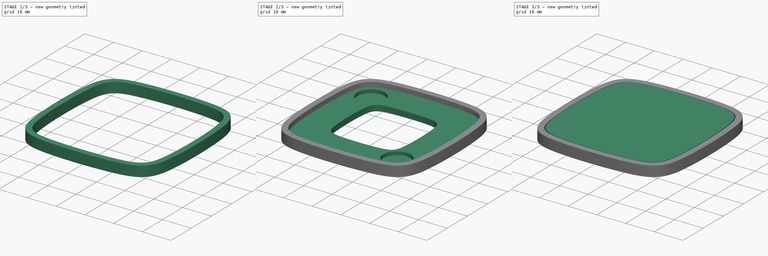
[diagram: build sequence overview — one tinted view per stage of 3, left to right]
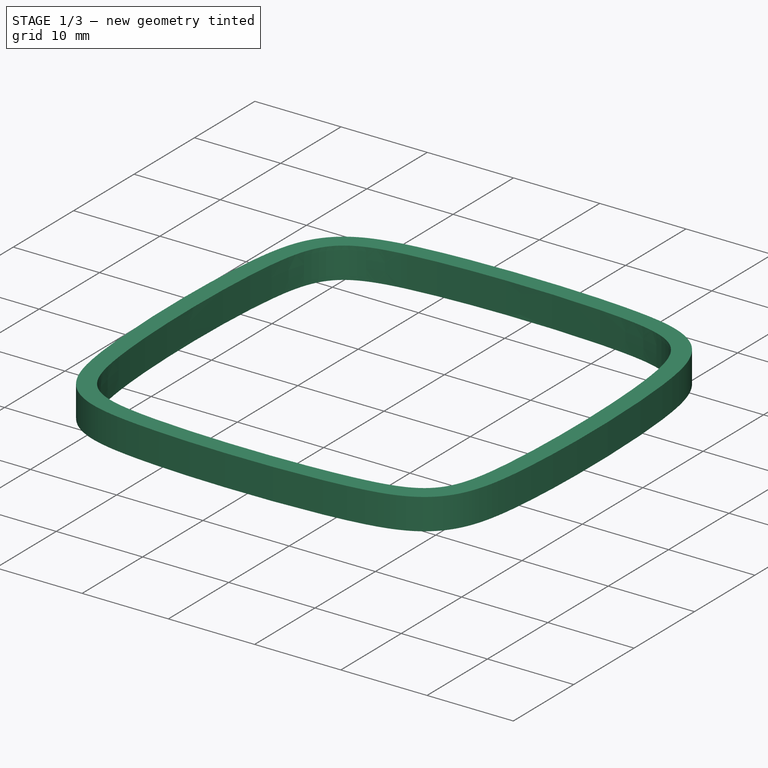
[diagram: stage 1 of 3 — iso view after this stage's code; geometry added in this stage tinted green]
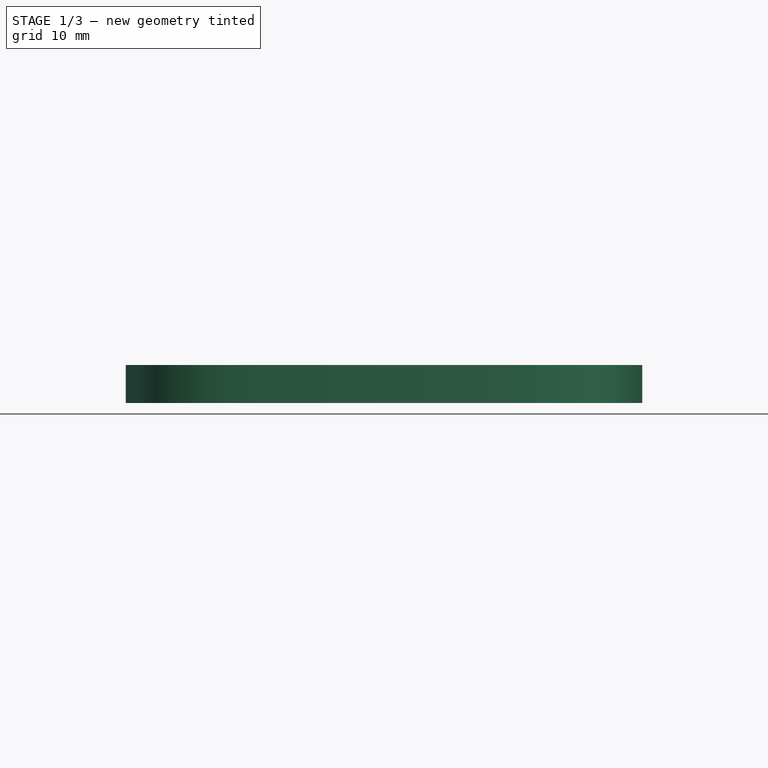
[diagram: stage 1 of 3 — front view after this stage's code; geometry added in this stage tinted green]
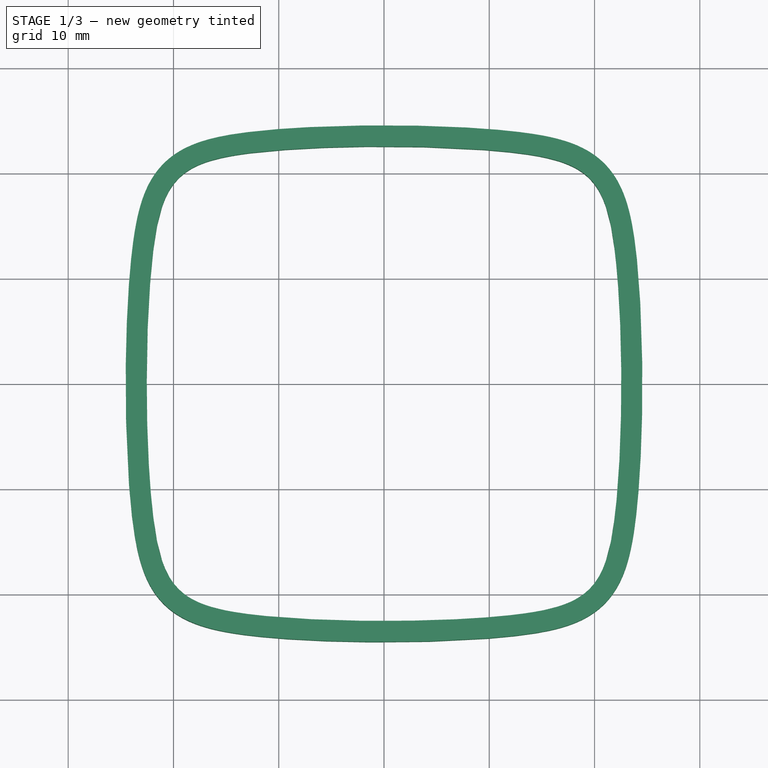
[diagram: stage 1 of 3 — top view after this stage's code; geometry added in this stage tinted green]
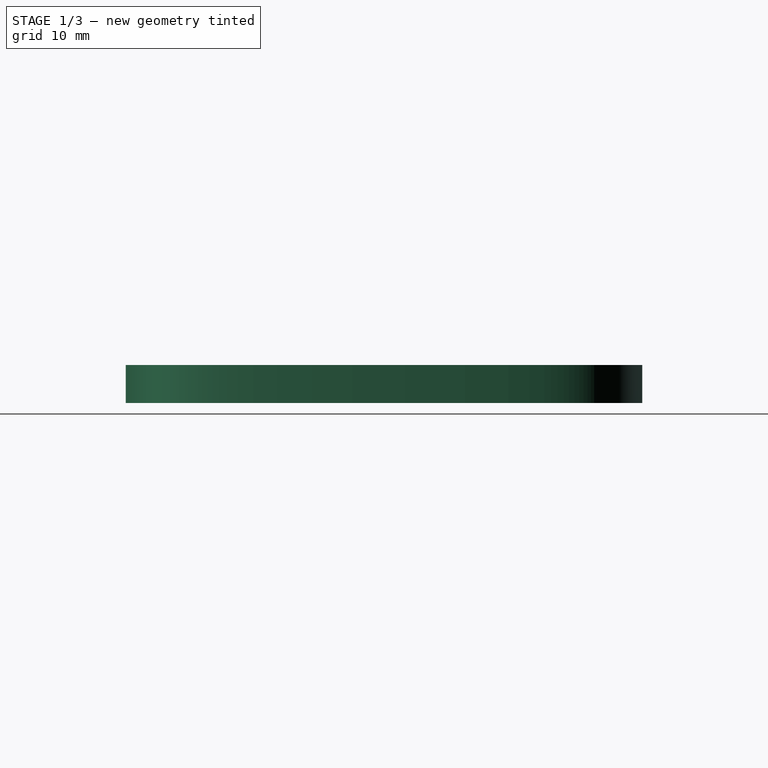
[diagram: stage 1 of 3 — right view after this stage's code; geometry added in this stage tinted green]
FCSTD DOCUMENT  (FreeCAD 0.20R29410 (Git))
Label: Mechanical Design
License: All rights reserved
LicenseURL: http://en.wikipedia.org/wiki/All_rights_reserved
objects: Sketcher::SketchObject×6, PartDesign::Pad×3, PartDesign::Body×2, PartDesign::Plane×2, PartDesign::Pocket×2, App::VRMLObject×1, PartDesign::Thickness×1
note: 22 computed .brp shape members not serialized (recipe doc carries the construction recipe); baked Part::Feature solids carry a one-line shape summary decoded from their .brp

FEATURE [Sketcher::SketchObject] Sketch001  label="Copper"
  FullyConstrained = true
  MapMode = 5
  Placement = pos=(0,0,1.6) rot=(0,0,1;0rad)
  Support = -> [Pad]
  sketch-geometry (46):
    g0: LineSegment StartX=-16.7979 StartY=4.90718 StartZ=0 EndX=-1.8 EndY=4.90718 EndZ=0
    g1: LineSegment StartX=16.7979 StartY=4.90718 StartZ=0 EndX=16.7979 EndY=1.30718 EndZ=0
    g2: LineSegment StartX=16.7979 StartY=1.30718 StartZ=0 EndX=-16.7979 EndY=1.30718 EndZ=0
    g3: LineSegment StartX=-16.7979 StartY=1.30718 StartZ=0 EndX=-16.7979 EndY=4.90718 EndZ=0
    g4: LineSegment StartX=-10.649 StartY=-2.29282 StartZ=0 EndX=10.649 EndY=-2.29282 EndZ=0
    g5: LineSegment StartX=10.649 StartY=-2.29282 StartZ=0 EndX=10.649 EndY=-5.89282 EndZ=0
    g6: LineSegment StartX=10.649 StartY=-5.89282 StartZ=0 EndX=-10.649 EndY=-5.89282 EndZ=0
    g7: LineSegment StartX=-10.649 StartY=-5.89282 StartZ=0 EndX=-10.649 EndY=-2.29282 EndZ=0
    g8: LineSegment StartX=-1.8 StartY=17.4072 StartZ=0 EndX=1.8 EndY=17.4072 EndZ=0
    g9: LineSegment StartX=1.8 StartY=17.4072 StartZ=0 EndX=1.8 EndY=4.90718 EndZ=0
    g10: LineSegment StartX=1.8 StartY=4.90718 StartZ=0 EndX=16.7979 EndY=4.90718 EndZ=0
    g11: LineSegment StartX=-1.8 StartY=4.90718 StartZ=0 EndX=-1.8 EndY=17.4072 EndZ=0
    g12: LineSegment StartX=-4.5 StartY=-9.49282 StartZ=0 EndX=4.5 EndY=-9.49282 EndZ=0
    g13: LineSegment StartX=4.5 StartY=-9.49282 StartZ=0 EndX=4.5 EndY=-13.0928 EndZ=0
    g14: LineSegment StartX=4.5 StartY=-13.0928 StartZ=0 EndX=-4.5 EndY=-13.0928 EndZ=0
    g15: LineSegment StartX=-4.5 StartY=-13.0928 StartZ=0 EndX=-4.5 EndY=-9.49282 EndZ=0
    g16: LineSegment StartX=-16.7979 StartY=1.30718 StartZ=0 EndX=-4.5 EndY=-13.0928 EndZ=0
    g17: LineSegment StartX=-10.649 StartY=-2.29282 StartZ=0 EndX=-10.649 EndY=1.30718 EndZ=0
    g18: LineSegment StartX=-4.5 StartY=-9.49282 StartZ=0 EndX=-4.5 EndY=-5.89282 EndZ=0
    g19: Circle CenterX=-1e-16 CenterY=-1e-16 CenterZ=0 NormalX=0 NormalY=0 NormalZ=1 AngleXU=0 Radius=17.5
    g20-g27: Circle x8 (B-spline internal-alignment scaffolding for g28; pole/knot coordinates omitted)
    g28: BSplineCurve PolesCount=8 KnotsCount=9 Degree=3 IsPeriodic=1
    g29-g37: GeomPoint x9 (B-spline internal-alignment scaffolding for g28; pole/knot coordinates omitted)
    g38: LineSegment StartX=-15 StartY=20 StartZ=0 EndX=15 EndY=20 EndZ=0
    g39: LineSegment StartX=15 StartY=20 StartZ=0 EndX=15 EndY=-20 EndZ=0
    g40: LineSegment StartX=15 StartY=-20 StartZ=0 EndX=-15 EndY=-20 EndZ=0
    g41: LineSegment StartX=-15 StartY=-20 StartZ=0 EndX=-15 EndY=20 EndZ=0
    g42: LineSegment StartX=-20 StartY=-15 StartZ=0 EndX=20 EndY=-15 EndZ=0
    g43: LineSegment StartX=20 StartY=-15 StartZ=0 EndX=20 EndY=15 EndZ=0
    g44: LineSegment StartX=20 StartY=15 StartZ=0 EndX=-20 EndY=15 EndZ=0
    g45: LineSegment StartX=-20 StartY=15 StartZ=0 EndX=-20 EndY=-15 EndZ=0
  constraints (88):
    c: Coincident(g1,g2)
    c: Coincident(g2,g3)
    c: Coincident(g3,g0)
    c: Horizontal(g0)
    c: Vertical(g1)
    c: Vertical(g3)
    c: Coincident(g4,g5)
    c: Coincident(g5,g6)
    c: Coincident(g6,g7)
    c: Coincident(g7,g4)
    c: Horizontal(g4)
    c: Vertical(g5)
    c: Vertical(g7)
    c: Coincident(g8,g9)
    c: Coincident(g9,g10)
    c: Coincident(g11,g8)
    c: Horizontal(g8)
    c: Horizontal(g10)
    c: Vertical(g9)
    c: Vertical(g11)
    c: Coincident(g12,g13)
    c: Coincident(g13,g14)
    c: Coincident(g14,g15)
    c: Coincident(g15,g12)
    c: Horizontal(g12)
    c: Vertical(g13)
    c: Vertical(g15)
    c: Coincident(g16,g2)
    c: Coincident(g16,g14)
    c: PointOnObject(g6,g16)
    c: Coincident(g1,g10)
    c: Coincident(g11,g0)
    c: Symmetric(g2,g1,g-2)
    c: Symmetric(g6,g5,g-2)
    c: Symmetric(g14,g13,g-2)
    c: Equal(g13,g5)
    c: Equal(g5,g1)
    c: Equal(g1,g8)
    c: Coincident(g17,g4)
    c: PointOnObject(g17,g2)
    c: Vertical(g17)
    c: Coincident(g18,g12)
    c: PointOnObject(g18,g6)
    c: Vertical(g18)
    c: Equal(g17,g18)
    c: Equal(g18,g5)
    c: Symmetric(g0,g9,g-2)
    c: Coincident(g19,g-1)
    c: Diameter(g19) = 35
    c: PointOnObject(g8,g19)
    c: PointOnObject(g0,g19)
    c: DistanceX(g8,g8) = 3.6
    c: DistanceY(g11,g11) = 12.5
    c: DistanceX(g14,g14) = 9
    c: Weight(g20) = 1
    c: Equal(g20, g21-g27) x7
    c: InternalAlignment(g20-g27 -> g28) x8
    c: InternalAlignment(g29-g37 -> g28) x9
    c: Coincident(g38,g39)
    c: Coincident(g39,g40)
    c: Coincident(g40,g41)
    c: Coincident(g41,g38)
    c: Horizontal(g38)
    c: Horizontal(g40)
    c: Vertical(g39)
    c: Vertical(g41)
    c: Coincident(g38,g20)
    c: Coincident(g39,g24)
    c: Coincident(g42,g43)
    c: Coincident(g43,g44)
    c: Coincident(g44,g45)
    c: Coincident(g45,g42)
    c: Horizontal(g42)
    c: Horizontal(g44)
    c: Vertical(g43)
    c: Vertical(g45)
    c: Coincident(g42,g22)
    c: Coincident(g43,g26)
    c: Coincident(g38,g27)
    c: Coincident(g23,g40)
    c: Coincident(g25,g42)
    c: Coincident(g21,g44)
    c: Symmetric(g20,g24,g19)
    c: Symmetric(g22,g26,g19)
    c: DistanceY(g41,g41) = 40
    c: DistanceY(g45,g45) = 30
    c: Equal(g38,g45)
    c: Equal(g44,g41)
FEATURE [PartDesign::Body] Body  label="PCB Design"
  Group = -> [Sketch,Pad,Sketch001]
  Origin = -> Origin
  Tip = -> Pad
FEATURE [App::VRMLObject] groundPatch
  Placement = pos=(-0.2,0.2,0.8) rot=(0,0,1;0rad)
FEATURE [Sketcher::SketchObject] Sketch002
  FullyConstrained = true
  MapMode = 5
  Support = -> [XY_Plane001]
  sketch-geometry (26):
    g0-g7: Circle x8 (B-spline internal-alignment scaffolding for g8; pole/knot coordinates omitted)
    g8: BSplineCurve PolesCount=8 KnotsCount=9 Degree=3 IsPeriodic=1
    g9-g17: GeomPoint x9 (B-spline internal-alignment scaffolding for g8; pole/knot coordinates omitted)
    g18: LineSegment StartX=-17.75 StartY=22.75 StartZ=0 EndX=17.75 EndY=22.75 EndZ=0
    g19: LineSegment StartX=17.75 StartY=22.75 StartZ=0 EndX=17.75 EndY=-22.75 EndZ=0
    g20: LineSegment StartX=17.75 StartY=-22.75 StartZ=0 EndX=-17.75 EndY=-22.75 EndZ=0
    g21: LineSegment StartX=-17.75 StartY=-22.75 StartZ=0 EndX=-17.75 EndY=22.75 EndZ=0
    g22: LineSegment StartX=-22.75 StartY=-17.75 StartZ=0 EndX=22.75 EndY=-17.75 EndZ=0
    g23: LineSegment StartX=22.75 StartY=-17.75 StartZ=0 EndX=22.75 EndY=17.75 EndZ=0
    g24: LineSegment StartX=22.75 StartY=17.75 StartZ=0 EndX=-22.75 EndY=17.75 EndZ=0
    g25: LineSegment StartX=-22.75 StartY=17.75 StartZ=0 EndX=-22.75 EndY=-17.75 EndZ=0
  constraints (34):
    c: Weight(g0) = 1
    c: Equal(g0, g1-g7) x7
    c: InternalAlignment(g0-g7 -> g8) x8
    c: InternalAlignment(g9-g17 -> g8) x9
    c: Coincident(g18,g19)
    c: Coincident(g19,g20)
    c: Coincident(g20,g21)
    c: Coincident(g21,g18)
    c: Horizontal(g18)
    c: Horizontal(g20)
    c: Vertical(g19)
    c: Vertical(g21)
    c: Coincident(g18,g1)
    c: Coincident(g19,g5)
    c: Coincident(g22,g23)
    c: Coincident(g23,g24)
    c: Coincident(g24,g25)
    c: Coincident(g25,g22)
    c: Horizontal(g22)
    c: Horizontal(g24)
    c: Vertical(g23)
    c: Vertical(g25)
    c: Coincident(g22,g7)
    c: Coincident(g23,g3)
    c: Coincident(g24,g0)
    c: Coincident(g2,g18)
    c: Coincident(g20,g6)
    c: Coincident(g4,g22)
    c: Equal(g25,g20)
    c: Equal(g21,g22)
    c: Symmetric(g1,g5,g-1)
    c: Symmetric(g0,g4,g-1)
    c: DistanceY(g25,g25) = 35.5
    c: DistanceY(g21,g21) = 45.5
FEATURE [PartDesign::Pad] Pad001
  Direction = (0,0,1)
  Length = 1.6
  Length2 = 2
  Profile = -> Sketch002
  ReferenceAxis = -> Sketch002 [N_Axis]
  Type = 4
FEATURE [PartDesign::Thickness] Thickness
  Base = -> Pad001 [Face3,Face2]
  BaseFeature = -> Pad001
  Intersection = false
  Join = 0
  Mode = 0
  SupportTransform = false
  Value = 2
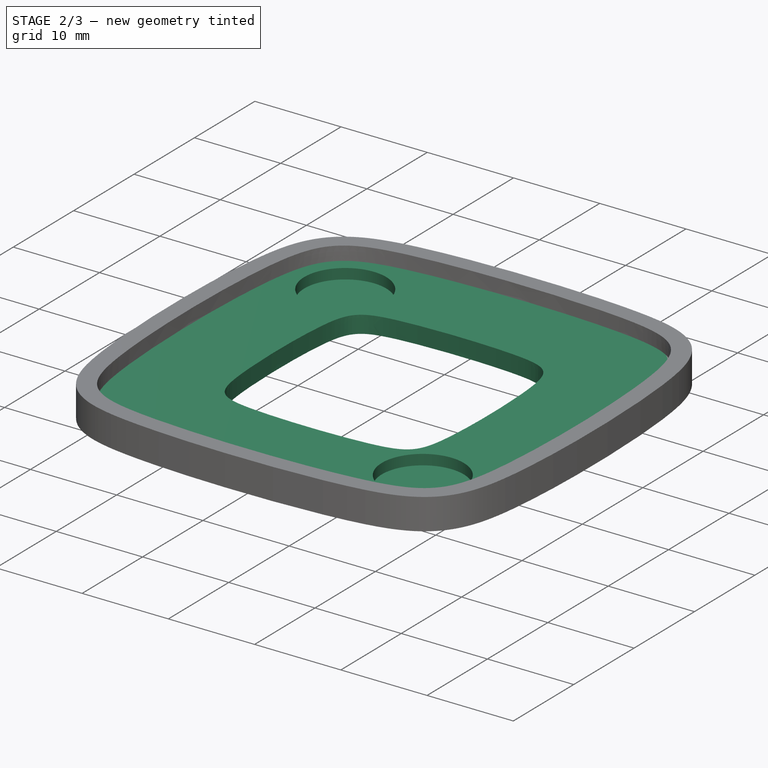
[diagram: stage 2 of 3 — iso view after this stage's code; geometry added in this stage tinted green]
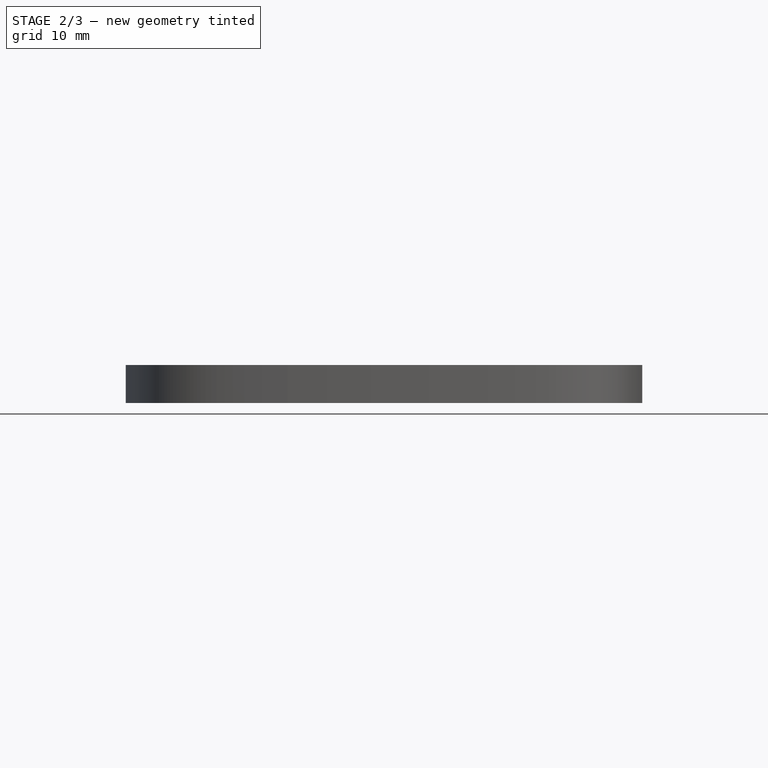
[diagram: stage 2 of 3 — front view after this stage's code; geometry added in this stage tinted green]
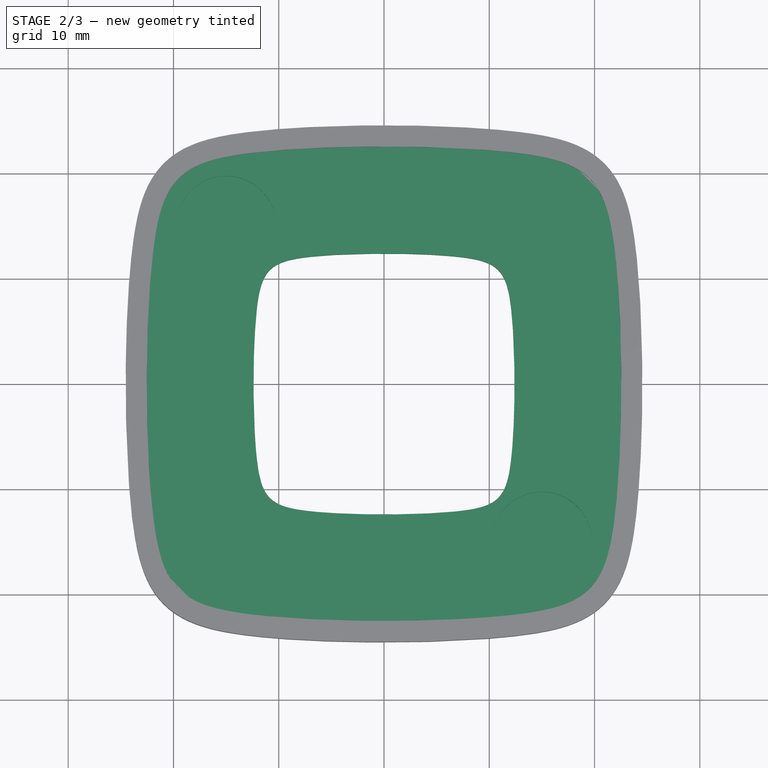
[diagram: stage 2 of 3 — top view after this stage's code; geometry added in this stage tinted green]
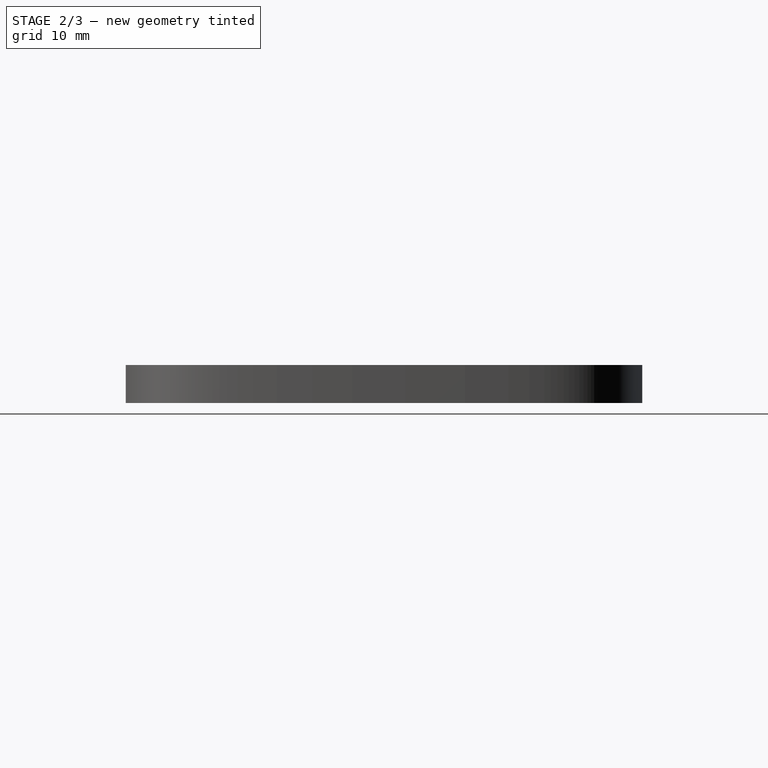
[diagram: stage 2 of 3 — right view after this stage's code; geometry added in this stage tinted green]
FEATURE [Sketcher::SketchObject] Sketch003
  FullyConstrained = true
  MapMode = 5
  Support = -> [XY_Plane001]
  sketch-geometry (52):
    g0-g7: Circle x8 (B-spline internal-alignment scaffolding for g8; pole/knot coordinates omitted)
    g8: BSplineCurve PolesCount=8 KnotsCount=9 Degree=3 IsPeriodic=1
    g9-g17: GeomPoint x9 (B-spline internal-alignment scaffolding for g8; pole/knot coordinates omitted)
    g18: LineSegment StartX=-10 StartY=12.5 StartZ=0 EndX=10 EndY=12.5 EndZ=0
    g19: LineSegment StartX=10 StartY=12.5 StartZ=0 EndX=10 EndY=-12.5 EndZ=0
    g20: LineSegment StartX=10 StartY=-12.5 StartZ=0 EndX=-10 EndY=-12.5 EndZ=0
    g21: LineSegment StartX=-10 StartY=-12.5 StartZ=0 EndX=-10 EndY=12.5 EndZ=0
    g22: LineSegment StartX=-12.5 StartY=10 StartZ=0 EndX=12.5 EndY=10 EndZ=0
    g23: LineSegment StartX=12.5 StartY=10 StartZ=0 EndX=12.5 EndY=-10 EndZ=0
    g24: LineSegment StartX=12.5 StartY=-10 StartZ=0 EndX=-12.5 EndY=-10 EndZ=0
    g25: LineSegment StartX=-12.5 StartY=-10 StartZ=0 EndX=-12.5 EndY=10 EndZ=0
    g26-g33: Circle x8 (B-spline internal-alignment scaffolding for g34; pole/knot coordinates omitted)
    g34: BSplineCurve PolesCount=8 KnotsCount=9 Degree=3 IsPeriodic=1
    g35-g43: GeomPoint x9 (B-spline internal-alignment scaffolding for g34; pole/knot coordinates omitted)
    g44: LineSegment StartX=-18 StartY=23 StartZ=0 EndX=18 EndY=23 EndZ=0
    g45: LineSegment StartX=18 StartY=23 StartZ=0 EndX=18 EndY=-23 EndZ=0
    g46: LineSegment StartX=18 StartY=-23 StartZ=0 EndX=-18 EndY=-23 EndZ=0
    g47: LineSegment StartX=-18 StartY=-23 StartZ=0 EndX=-18 EndY=23 EndZ=0
    g48: LineSegment StartX=-23 StartY=-18 StartZ=0 EndX=23 EndY=-18 EndZ=0
    g49: LineSegment StartX=23 StartY=-18 StartZ=0 EndX=23 EndY=18 EndZ=0
    g50: LineSegment StartX=23 StartY=18 StartZ=0 EndX=-23 EndY=18 EndZ=0
    g51: LineSegment StartX=-23 StartY=18 StartZ=0 EndX=-23 EndY=-18 EndZ=0
  constraints (68):
    c: Weight(g0) = 1
    c: Equal(g0, g1-g7) x7
    c: InternalAlignment(g0-g7 -> g8) x8
    c: InternalAlignment(g9-g17 -> g8) x9
    c: Coincident(g18,g19)
    c: Coincident(g19,g20)
    c: Coincident(g20,g21)
    c: Coincident(g21,g18)
    c: Horizontal(g18)
    c: Horizontal(g20)
    c: Vertical(g19)
    c: Vertical(g21)
    c: Coincident(g18,g0)
    c: Coincident(g19,g4)
    c: Coincident(g22,g23)
    c: Coincident(g23,g24)
    c: Coincident(g24,g25)
    c: Coincident(g25,g22)
    c: Horizontal(g22)
    c: Horizontal(g24)
    c: Vertical(g23)
    c: Vertical(g25)
    c: Coincident(g22,g1)
    c: Coincident(g23,g5)
    c: Coincident(g18,g7)
    c: Coincident(g3,g20)
    c: Coincident(g2,g24)
    c: Coincident(g6,g22)
    c: Equal(g22,g21)
    c: Equal(g25,g18)
    c: Symmetric(g1,g5,g-1)
    c: Symmetric(g3,g7,g-1)
    c: DistanceY(g25,g25) = 20
    c: DistanceY(g21,g21) = 25
    c: Weight(g26) = 1
    c: Equal(g26, g27-g33) x7
    c: InternalAlignment(g26-g33 -> g34) x8
    c: InternalAlignment(g35-g43 -> g34) x9
    c: Coincident(g44,g45)
    c: Coincident(g45,g46)
    c: Coincident(g46,g47)
    c: Coincident(g47,g44)
    c: Horizontal(g44)
    c: Horizontal(g46)
    c: Vertical(g45)
    c: Vertical(g47)
    c: Coincident(g44,g32)
    c: Coincident(g45,g28)
    c: Coincident(g48,g49)
    c: Coincident(g49,g50)
    c: Coincident(g50,g51)
    c: Coincident(g51,g48)
    c: Horizontal(g48)
    c: Horizontal(g50)
    c: Vertical(g49)
    c: Vertical(g51)
    c: Coincident(g48,g26)
    c: Coincident(g49,g30)
    c: Coincident(g33,g50)
    c: Coincident(g29,g48)
    c: Coincident(g27,g46)
    c: Coincident(g44,g31)
    c: DistanceY(g51,g51) = 36
    c: DistanceY(g47,g47) = 46
    c: Equal(g44,g51)
    c: Equal(g47,g50)
    c: Symmetric(g32,g28,g-1)
    c: Symmetric(g33,g29,g-1)
FEATURE [PartDesign::Pad] Pad002
  BaseFeature = -> Thickness
  Direction = (0,0,1)
  Length = 2
  Length2 = 10
  Profile = -> Sketch003
  ReferenceAxis = -> Sketch003 [N_Axis]
  Reversed = true
  Type = 0
FEATURE [PartDesign::Plane] DatumPlane
  Length = 60
  MapMode = 5
  ResizeMode = 0
  Support = -> [Pad002]
  Width = 60
FEATURE [Sketcher::SketchObject] Sketch004
  FullyConstrained = true
  MapMode = 5
  Support = -> [DatumPlane]
  sketch-geometry (6):
    g0: Circle CenterX=-15 CenterY=15 CenterZ=0 NormalX=0 NormalY=0 NormalZ=1 AngleXU=0 Radius=4.75
    g1: Circle CenterX=15 CenterY=-15 CenterZ=0 NormalX=0 NormalY=0 NormalZ=1 AngleXU=0 Radius=4.75
    g2: LineSegment StartX=-15 StartY=15 StartZ=0 EndX=15 EndY=15 EndZ=0
    g3: LineSegment StartX=15 StartY=15 StartZ=0 EndX=15 EndY=-15 EndZ=0
    g4: LineSegment StartX=15 StartY=-15 StartZ=0 EndX=-15 EndY=-15 EndZ=0
    g5: LineSegment StartX=-15 StartY=-15 StartZ=0 EndX=-15 EndY=15 EndZ=0
  constraints (15):
    c: Coincident(g2,g3)
    c: Coincident(g3,g4)
    c: Coincident(g4,g5)
    c: Coincident(g5,g2)
    c: Horizontal(g2)
    c: Horizontal(g4)
    c: Vertical(g3)
    c: Vertical(g5)
    c: Coincident(g2,g0)
    c: Coincident(g3,g1)
    c: Symmetric(g4,g2,g-1)
    c: Equal(g2,g5)
    c: Equal(g0,g1)
    c: DistanceY(g3,g3) = 30
    c: Diameter(g1) = 9.5
FEATURE [PartDesign::Pocket] Pocket
  BaseFeature = -> Pad002
  Direction = (0,0,-1)
  Length = 1.2
  Length2 = 5
  Profile = -> Sketch004
  ReferenceAxis = -> Sketch004 [N_Axis]
  Type = 0
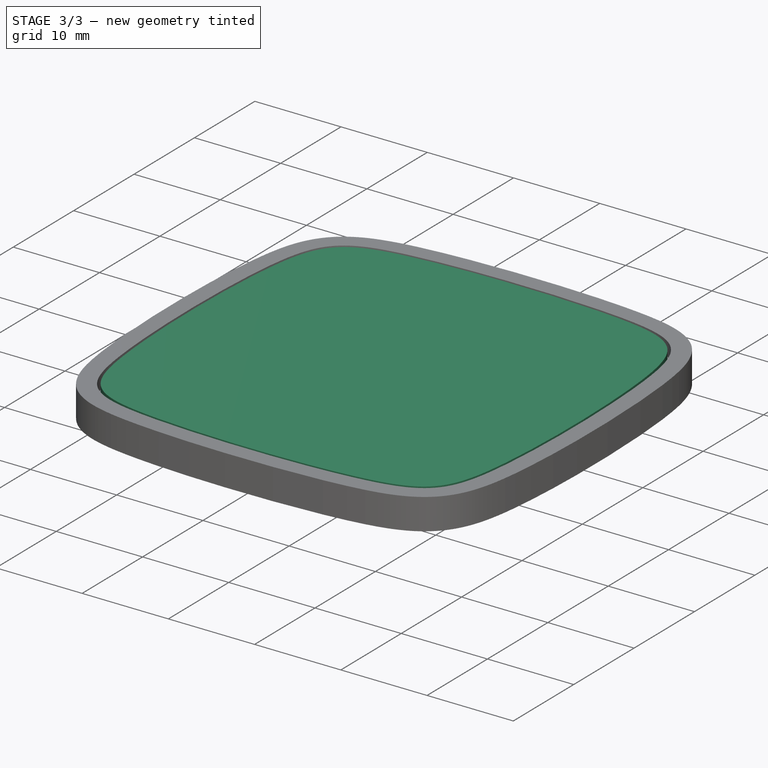
[diagram: stage 3 of 3 — iso view after this stage's code; geometry added in this stage tinted green]
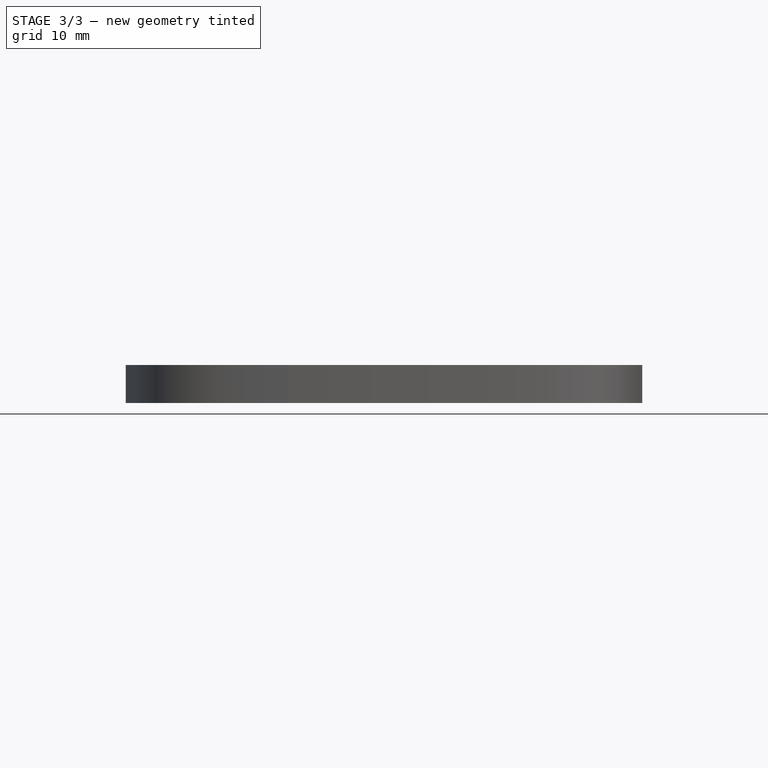
[diagram: stage 3 of 3 — front view after this stage's code; geometry added in this stage tinted green]
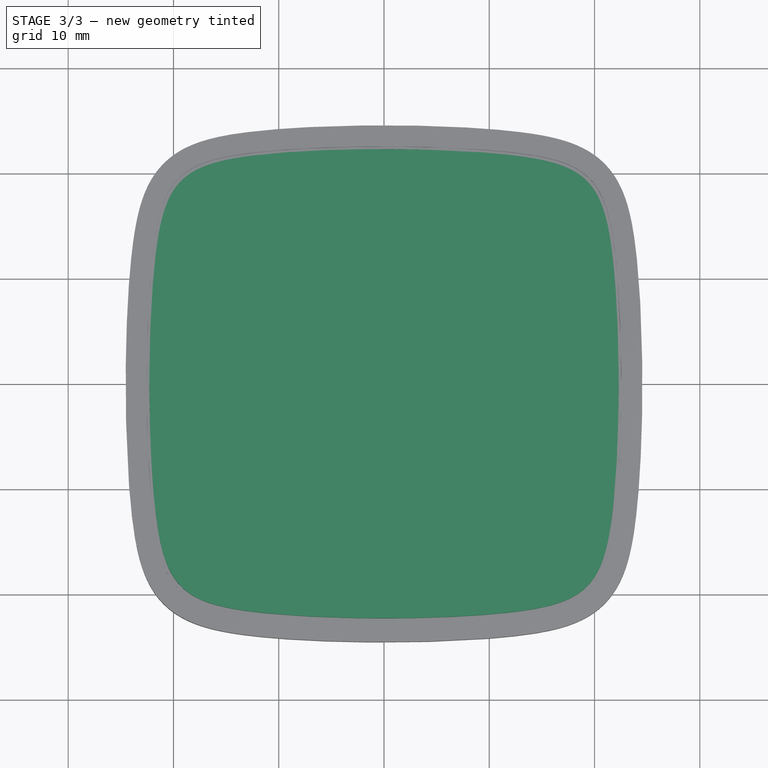
[diagram: stage 3 of 3 — top view after this stage's code; geometry added in this stage tinted green]
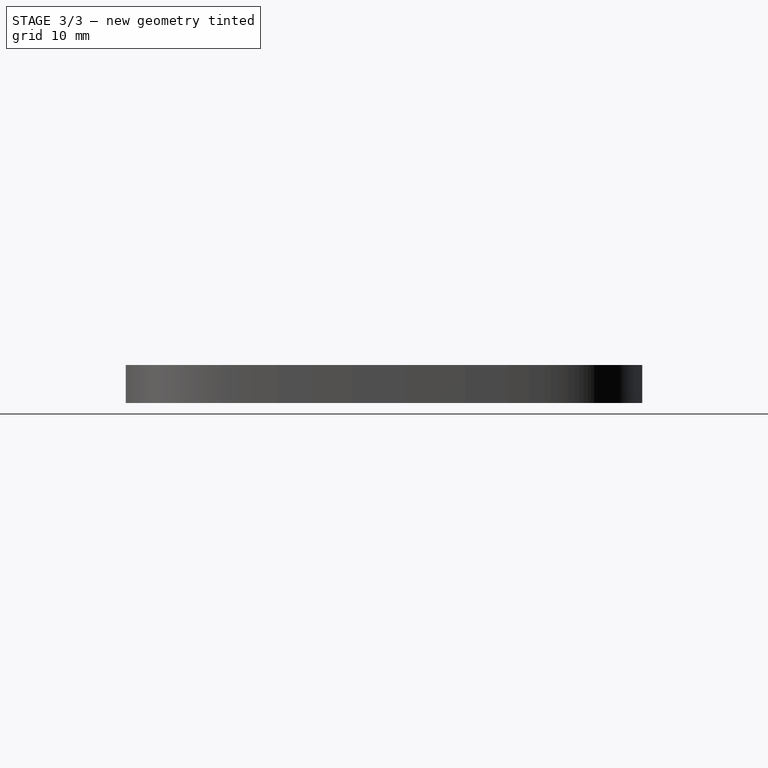
[diagram: stage 3 of 3 — right view after this stage's code; geometry added in this stage tinted green]
FEATURE [Sketcher::SketchObject] Sketch  label="PCB Outline"
  FullyConstrained = true
  MapMode = 5
  Support = -> [XY_Plane]
  sketch-geometry (26):
    g0-g7: Circle x8 (B-spline internal-alignment scaffolding for g8; pole/knot coordinates omitted)
    g8: BSplineCurve PolesCount=8 KnotsCount=9 Degree=3 IsPeriodic=1
    g9-g17: GeomPoint x9 (B-spline internal-alignment scaffolding for g8; pole/knot coordinates omitted)
    g18: LineSegment StartX=-17.5 StartY=22.5 StartZ=0 EndX=17.5 EndY=22.5 EndZ=0
    g19: LineSegment StartX=17.5 StartY=22.5 StartZ=0 EndX=17.5 EndY=-22.5 EndZ=0
    g20: LineSegment StartX=17.5 StartY=-22.5 StartZ=0 EndX=-17.5 EndY=-22.5 EndZ=0
    g21: LineSegment StartX=-17.5 StartY=-22.5 StartZ=0 EndX=-17.5 EndY=22.5 EndZ=0
    g22: LineSegment StartX=-22.5 StartY=17.5 StartZ=0 EndX=22.5 EndY=17.5 EndZ=0
    g23: LineSegment StartX=22.5 StartY=17.5 StartZ=0 EndX=22.5 EndY=-17.5 EndZ=0
    g24: LineSegment StartX=22.5 StartY=-17.5 StartZ=0 EndX=-22.5 EndY=-17.5 EndZ=0
    g25: LineSegment StartX=-22.5 StartY=-17.5 StartZ=0 EndX=-22.5 EndY=17.5 EndZ=0
  constraints (34):
    c: Weight(g0) = 1
    c: Equal(g0, g1-g7) x7
    c: InternalAlignment(g0-g7 -> g8) x8
    c: InternalAlignment(g9-g17 -> g8) x9
    c: Coincident(g18,g19)
    c: Coincident(g19,g20)
    c: Coincident(g20,g21)
    c: Coincident(g21,g18)
    c: Horizontal(g18)
    c: Horizontal(g20)
    c: Vertical(g19)
    c: Vertical(g21)
    c: Coincident(g18,g1)
    c: Coincident(g19,g5)
    c: Coincident(g22,g23)
    c: Coincident(g23,g24)
    c: Coincident(g24,g25)
    c: Coincident(g25,g22)
    c: Horizontal(g22)
    c: Horizontal(g24)
    c: Vertical(g23)
    c: Vertical(g25)
    c: Coincident(g22,g0)
    c: Coincident(g23,g4)
    c: Coincident(g2,g18)
    c: Coincident(g6,g20)
    c: Coincident(g7,g24)
    c: Equal(g18,g25)
    c: Equal(g21,g22)
    c: Symmetric(g1,g5,g-1)
    c: Symmetric(g7,g22,g-1)
    c: Coincident(g3,g22)
    c: DistanceY(g21,g21) = 45
    c: DistanceY(g25,g25) = 35
FEATURE [PartDesign::Pad] Pad
  Direction = (0,0,1)
  Length = 1.6
  Length2 = 10
  Profile = -> Sketch
  ReferenceAxis = -> Sketch [N_Axis]
  Type = 0
FEATURE [PartDesign::Plane] DatumPlane001
  Length = 60
  MapMode = 5
  Placement = pos=(0,0,-2) rot=(1,0,0;3.14159rad)
  ResizeMode = 0
  Support = -> [Pocket]
  Width = 60
FEATURE [Sketcher::SketchObject] Sketch005
  FullyConstrained = true
  MapMode = 5
  Placement = pos=(0,0,-2) rot=(1,0,0;3.14159rad)
  Support = -> [DatumPlane001]
  sketch-geometry (8):
    g0: LineSegment StartX=-17 StartY=20 StartZ=0 EndX=6 EndY=20 EndZ=0
    g1: LineSegment StartX=6 StartY=20 StartZ=0 EndX=6 EndY=14 EndZ=0
    g2: LineSegment StartX=6 StartY=14 StartZ=0 EndX=-17 EndY=14 EndZ=0
    g3: LineSegment StartX=-17 StartY=14 StartZ=0 EndX=-17 EndY=20 EndZ=0
    g4: LineSegment StartX=-6 StartY=-14 StartZ=0 EndX=17 EndY=-14 EndZ=0
    g5: LineSegment StartX=17 StartY=-14 StartZ=0 EndX=17 EndY=-20 EndZ=0
    g6: LineSegment StartX=17 StartY=-20 StartZ=0 EndX=-6 EndY=-20 EndZ=0
    g7: LineSegment StartX=-6 StartY=-20 StartZ=0 EndX=-6 EndY=-14 EndZ=0
  constraints (23):
    c: Coincident(g0,g1)
    c: Coincident(g1,g2)
    c: Coincident(g2,g3)
    c: Coincident(g3,g0)
    c: Horizontal(g0)
    c: Horizontal(g2)
    c: Vertical(g1)
    c: Vertical(g3)
    c: Coincident(g4,g5)
    c: Coincident(g5,g6)
    c: Coincident(g6,g7)
    c: Coincident(g7,g4)
    c: Horizontal(g4)
    c: Horizontal(g6)
    c: Vertical(g5)
    c: Vertical(g7)
    c: Equal(g4,g2)
    c: Equal(g1,g5)
    c: Symmetric(g1,g4,g-1)
    c: DistanceY(g5,g0) = 40
    c: DistanceX(g-1,g5) = 17
    c: DistanceY(g3,g3) = 6
    c: DistanceX(g6,g-1) = 6
FEATURE [PartDesign::Pocket] Pocket001
  BaseFeature = -> Pocket
  Direction = (0,0,1)
  Length = 1
  Length2 = 5
  Profile = -> Sketch005
  ReferenceAxis = -> Sketch005 [N_Axis]
  Type = 0
FEATURE [PartDesign::Body] Body001  label="Housing"
  Group = -> [Sketch002,Pad001,Thickness,Sketch003,Pad002,DatumPlane,Sketch004,Pocket,DatumPlane001,Sketch005,Pocket001]
  Origin = -> Origin001
  Tip = -> Pocket001
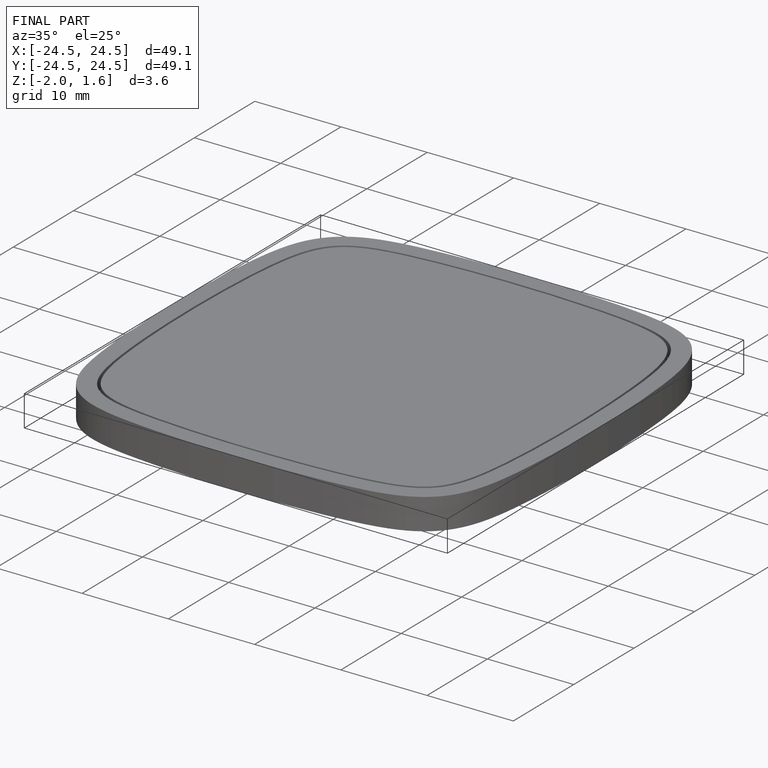
[diagram: finished part — iso view with bounding-box wireframe]
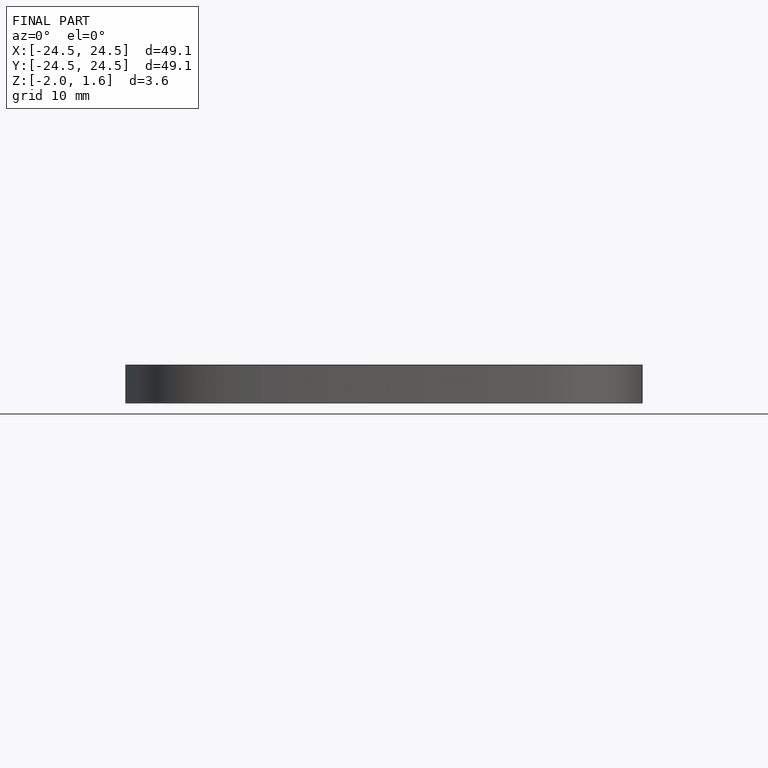
[diagram: finished part — front view with bounding-box wireframe]
